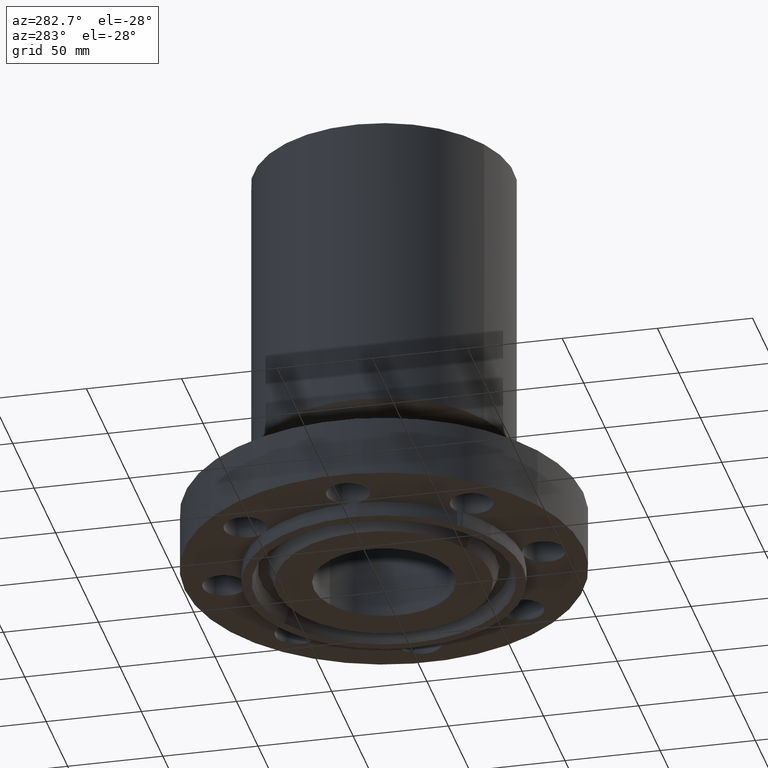
[diagram: clean part render]
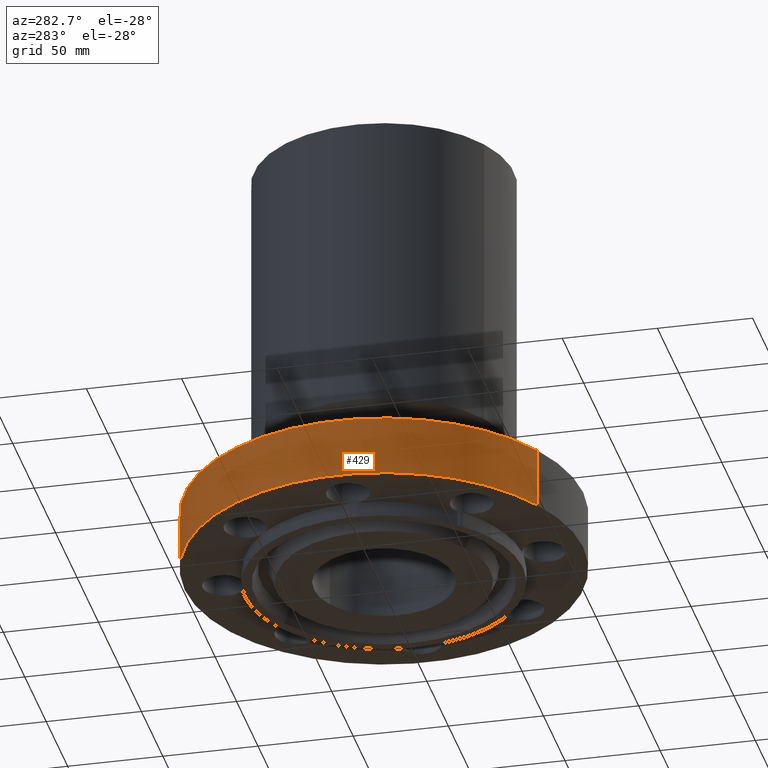
[diagram: same view with one face highlighted and labeled with its STEP entity id]
A machine part, auxiliary view. The second image highlights one B-rep face of the part: STEP entity #429.
In plain terms, the highlighted cylindrical surface (partial cylindrical patch) has radius 104.775 mm, axis along (0, 0, -1).
Its self-contained STEP definition (entity closure, byte-faithful):
#82=AXIS2_PLACEMENT_3D('Circle Axis2P3D',#80,#81,$) ;
#402=AXIS2_PLACEMENT_3D('Cylinder Axis2P3D',#399,#400,#401) ;
#413=AXIS2_PLACEMENT_3D('Circle Axis2P3D',#411,#412,$) ;
#80=CARTESIAN_POINT('Axis2P3D Location',(0.,0.,0.)) ;
#84=CARTESIAN_POINT('Vertex',(-1.97763034675,-3.62002806781,1.1189649382E-015)) ;
#86=CARTESIAN_POINT('Vertex',(1.97763034675,3.62002806781,1.1189649382E-015)) ;
#399=CARTESIAN_POINT('Axis2P3D Location',(0.,0.,4.21850000002)) ;
#404=CARTESIAN_POINT('Line Origine',(-1.97763034675,-3.62002806781,0.625000000003)) ;
#408=CARTESIAN_POINT('Vertex',(-1.97763034675,-3.62002806781,1.25000000001)) ;
#411=CARTESIAN_POINT('Axis2P3D Location',(0.,0.,1.25000000001)) ;
#415=CARTESIAN_POINT('Vertex',(1.97763034675,3.62002806781,1.25000000001)) ;
#418=CARTESIAN_POINT('Line Origine',(1.97763034675,3.62002806781,0.625000000003)) ;
#81=DIRECTION('Axis2P3D Direction',(0.,0.,-0.0393700787402)) ;
#400=DIRECTION('Axis2P3D Direction',(0.,0.,-0.0393700787402)) ;
#401=DIRECTION('Axis2P3D XDirection',(0.0188750212049,0.0345504945626,0.)) ;
#405=DIRECTION('Vector Direction',(0.,0.,-0.0393700787402)) ;
#412=DIRECTION('Axis2P3D Direction',(0.,0.,-0.0393700787402)) ;
#419=DIRECTION('Vector Direction',(0.,0.,-0.0393700787402)) ;
#406=VECTOR('Line Direction',#405,0.0393700787402) ;
#420=VECTOR('Line Direction',#419,0.0393700787402) ;
#424=ORIENTED_EDGE('',*,*,#88,.F.) ;
#425=ORIENTED_EDGE('',*,*,#410,.T.) ;
#426=ORIENTED_EDGE('',*,*,#417,.T.) ;
#427=ORIENTED_EDGE('',*,*,#422,.F.) ;
#429=ADVANCED_FACE('PartBody',(#428),#403,.T.) ;
#83=CIRCLE('generated circle',#82,4.12500000002) ;
#414=CIRCLE('generated circle',#413,4.12500000002) ;
#403=CYLINDRICAL_SURFACE('generated cylinder',#402,4.12500000002) ;
#88=EDGE_CURVE('',#85,#87,#83,.T.) ;
#410=EDGE_CURVE('',#85,#409,#407,.F.) ;
#417=EDGE_CURVE('',#409,#416,#414,.T.) ;
#422=EDGE_CURVE('',#87,#416,#421,.F.) ;
#423=EDGE_LOOP('',(#424,#425,#426,#427)) ;
#428=FACE_OUTER_BOUND('',#423,.T.) ;
#407=LINE('Line',#404,#406) ;
#421=LINE('Line',#418,#420) ;
#85=VERTEX_POINT('',#84) ;
#87=VERTEX_POINT('',#86) ;
#409=VERTEX_POINT('',#408) ;
#416=VERTEX_POINT('',#415) ;